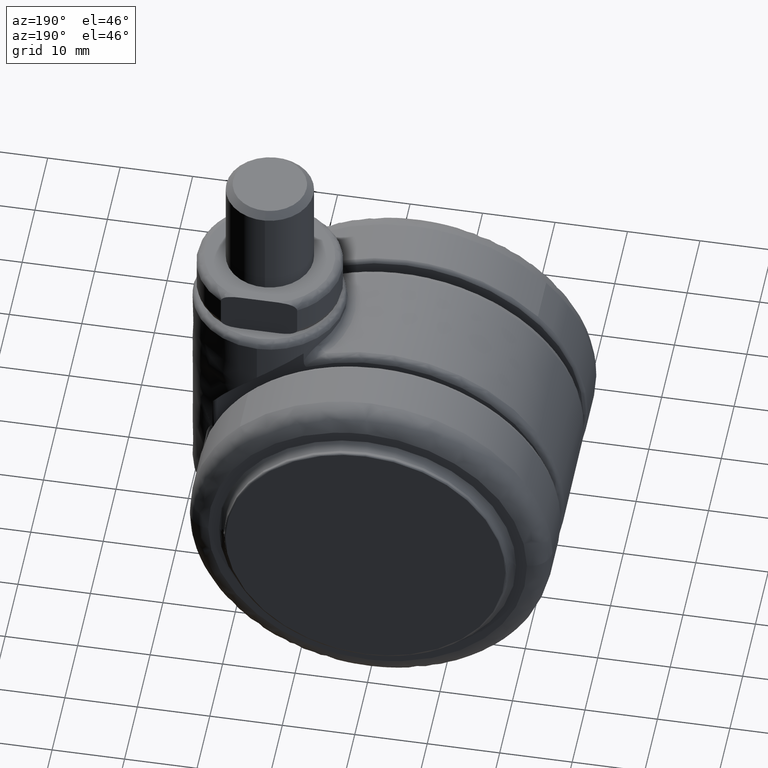
[diagram: clean part render]
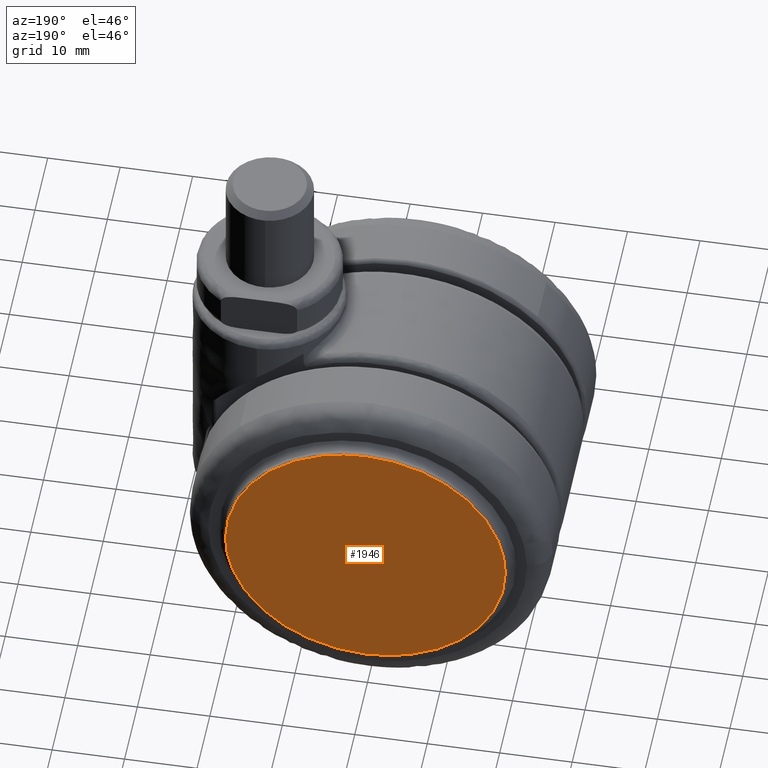
[diagram: same view with one face highlighted and labeled with its STEP entity id]
A machine part, auxiliary view. The second image highlights one B-rep face of the part: STEP entity #1946.
In plain terms, the highlighted face is a freeform B-spline surface patch.
Its self-contained STEP definition (entity closure, byte-faithful):
#1808=CARTESIAN_POINT('',(19.300000003138631,21.600000000000001,-1.770490E-015));
#1809=VERTEX_POINT('',#1808);
#1823=CARTESIAN_POINT('',(2.645150E-015,21.600000000000001,19.300000000000001));
#1824=VERTEX_POINT('',#1823);
#1825=CARTESIAN_POINT('',(19.300000003138631,21.600000000000001,-1.770490E-015));
#1826=CARTESIAN_POINT('',(19.300000001569316,21.599999999999991,19.300000000000008));
#1827=CARTESIAN_POINT('',(2.645150E-015,21.600000000000001,19.300000000000001));
#1835=(BOUNDED_CURVE()B_SPLINE_CURVE(2,(#1825,#1826,#1827),.UNSPECIFIED.,.F.,.U.)B_SPLINE_CURVE_WITH_KNOTS((3,3),(0.750000000000000,1.0),.UNSPECIFIED.)CURVE()GEOMETRIC_REPRESENTATION_ITEM()RATIONAL_B_SPLINE_CURVE((1.0,0.707106781186547,1.0))REPRESENTATION_ITEM(''));
#1836=EDGE_CURVE('',#1809,#1824,#1835,.T.);
#1838=CARTESIAN_POINT('',(-19.300000003138621,21.600000000000009,8.852452E-016));
#1839=VERTEX_POINT('',#1838);
#1840=CARTESIAN_POINT('',(2.645150E-015,21.600000000000001,19.300000000000001));
#1841=CARTESIAN_POINT('',(-19.300000001569316,21.600000000000009,19.300000000000008));
#1842=CARTESIAN_POINT('',(-19.300000003138621,21.600000000000009,8.852452E-016));
#1850=(BOUNDED_CURVE()B_SPLINE_CURVE(2,(#1840,#1841,#1842),.UNSPECIFIED.,.F.,.U.)B_SPLINE_CURVE_WITH_KNOTS((3,3),(0.0,0.250000000000000),.UNSPECIFIED.)CURVE()GEOMETRIC_REPRESENTATION_ITEM()RATIONAL_B_SPLINE_CURVE((1.0,0.707106781186547,1.0))REPRESENTATION_ITEM(''));
#1851=EDGE_CURVE('',#1824,#1839,#1850,.T.);
#1903=CARTESIAN_POINT('',(2.645150E-015,21.600000000000001,-19.300000000000001));
#1904=VERTEX_POINT('',#1903);
#1905=CARTESIAN_POINT('',(-19.300000003138621,21.600000000000009,8.852452E-016));
#1906=CARTESIAN_POINT('',(-19.300000001569316,21.600000000000009,-19.300000000000008));
#1907=CARTESIAN_POINT('',(2.645150E-015,21.600000000000001,-19.300000000000001));
#1915=(BOUNDED_CURVE()B_SPLINE_CURVE(2,(#1905,#1906,#1907),.UNSPECIFIED.,.F.,.U.)B_SPLINE_CURVE_WITH_KNOTS((3,3),(0.250000000000000,0.500000000000000),.UNSPECIFIED.)CURVE()GEOMETRIC_REPRESENTATION_ITEM()RATIONAL_B_SPLINE_CURVE((1.0,0.707106781186547,1.0))REPRESENTATION_ITEM(''));
#1916=EDGE_CURVE('',#1839,#1904,#1915,.T.);
#1918=CARTESIAN_POINT('',(2.645150E-015,21.600000000000001,-19.300000000000001));
#1919=CARTESIAN_POINT('',(19.300000001569316,21.599999999999991,-19.300000000000008));
#1920=CARTESIAN_POINT('',(19.300000003138631,21.600000000000001,-1.770490E-015));
#1928=(BOUNDED_CURVE()B_SPLINE_CURVE(2,(#1918,#1919,#1920),.UNSPECIFIED.,.F.,.U.)B_SPLINE_CURVE_WITH_KNOTS((3,3),(0.500000000000000,0.750000000000000),.UNSPECIFIED.)CURVE()GEOMETRIC_REPRESENTATION_ITEM()RATIONAL_B_SPLINE_CURVE((1.0,0.707106781186547,1.0))REPRESENTATION_ITEM(''));
#1929=EDGE_CURVE('',#1904,#1809,#1928,.T.);
#1935=CARTESIAN_POINT('',(21.228069928637890,21.600000000000001,-21.228069925185711));
#1936=CARTESIAN_POINT('',(21.228069928637890,21.600000000000001,21.228070960518391));
#1937=CARTESIAN_POINT('',(-21.228070963970559,21.600000000000009,-21.228069925185711));
#1938=CARTESIAN_POINT('',(-21.228070963970559,21.600000000000009,21.228070960518391));
#1939=B_SPLINE_SURFACE_WITH_KNOTS('',1,1,((#1935,#1937),(#1936,#1938)),.UNSPECIFIED.,.F.,.F.,.U.,(2,2),(2,2),(0.0,42.456140885704102),(0.0,42.456140892608452),.UNSPECIFIED.);
#1940=ORIENTED_EDGE('',*,*,#1836,.F.);
#1941=ORIENTED_EDGE('',*,*,#1929,.F.);
#1942=ORIENTED_EDGE('',*,*,#1916,.F.);
#1943=ORIENTED_EDGE('',*,*,#1851,.F.);
#1944=EDGE_LOOP('',(#1940,#1941,#1942,#1943));
#1945=FACE_OUTER_BOUND('',#1944,.T.);
#1946=ADVANCED_FACE('',(#1945),#1939,.F.);